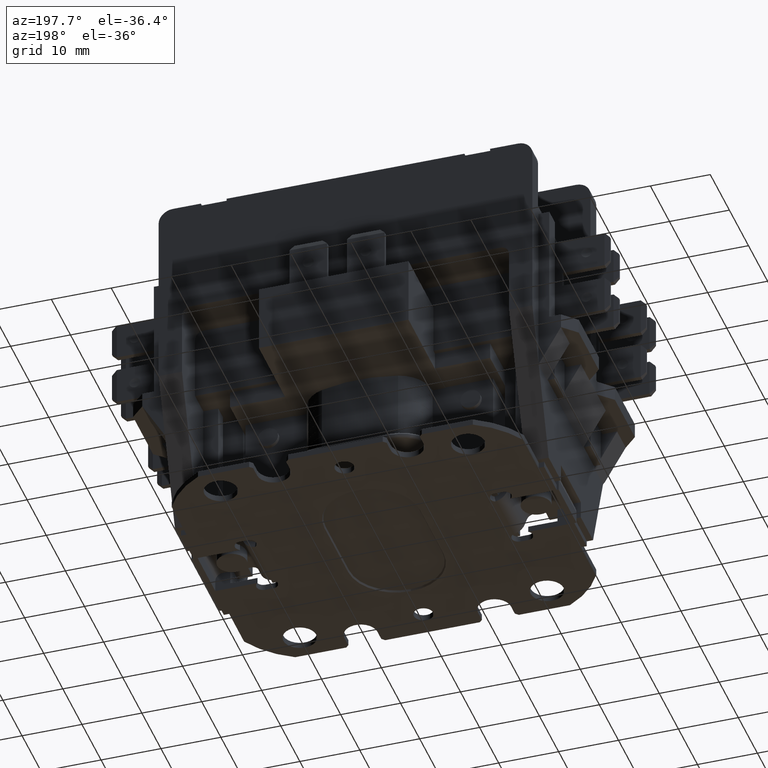
[diagram: clean part render]
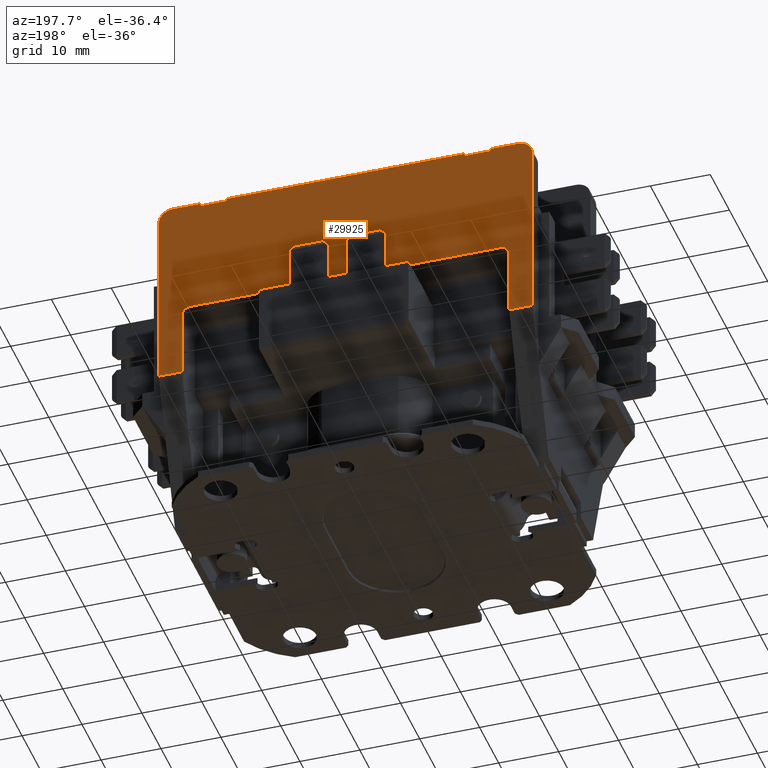
[diagram: same view with one face highlighted and labeled with its STEP entity id]
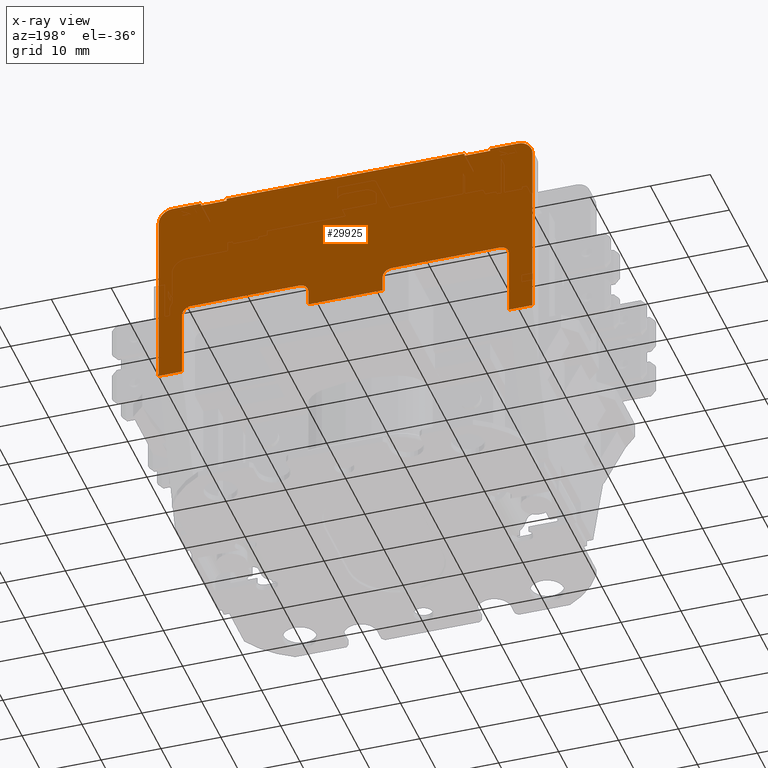
[diagram: x-ray of the same camera — body ghosted, the highlighted face saturated]
A machine part, auxiliary view. The second image highlights one B-rep face of the part: STEP entity #29925.
The next image is the same camera in x-ray: the body ghosted, the highlighted face saturated — about 0% of this face is hidden behind the body in this view.
In plain terms, the highlighted planar face has unit normal (0, 1, -0).
Its self-contained STEP definition (entity closure, byte-faithful):
#1036=LINE($,#43454,#3866);
#1072=LINE($,#43547,#3902);
#1845=LINE($,#48075,#4675);
#1883=LINE($,#48150,#4713);
#1885=LINE($,#48155,#4715);
#1887=LINE($,#48158,#4717);
#1890=LINE($,#48164,#4720);
#1892=LINE($,#48170,#4722);
#1895=LINE($,#48175,#4725);
#1909=LINE($,#48201,#4739);
#1923=LINE($,#48224,#4753);
#2105=LINE($,#48597,#4935);
#2125=LINE($,#48642,#4955);
#2137=LINE($,#48663,#4967);
#2148=LINE($,#48699,#4978);
#2153=LINE($,#48715,#4983);
#2157=LINE($,#48725,#4987);
#2972=LINE($,#53566,#5802);
#2974=LINE($,#53572,#5804);
#2975=LINE($,#53574,#5805);
#3866=VECTOR($,#34902,1.24);
#3902=VECTOR($,#34988,0.254967316379998);
#4675=VECTOR($,#37113,0.465);
#4713=VECTOR($,#37179,0.0399999999999983);
#4715=VECTOR($,#37183,0.0399999999999983);
#4717=VECTOR($,#37187,0.429999999999996);
#4720=VECTOR($,#37192,0.0399999999999983);
#4722=VECTOR($,#37196,0.0399999999999983);
#4725=VECTOR($,#37201,0.43);
#4739=VECTOR($,#37223,3.97);
#4753=VECTOR($,#37243,0.465000000000004);
#4935=VECTOR($,#37641,0.389999999999999);
#4955=VECTOR($,#37689,0.39);
#4967=VECTOR($,#37705,1.11);
#4978=VECTOR($,#37748,1.81);
#4983=VECTOR($,#37765,0.254967316379998);
#4987=VECTOR($,#37779,1.81);
#5802=VECTOR($,#40314,3.01);
#5804=VECTOR($,#40324,3.01);
#5805=VECTOR($,#40327,1.11);
#7080=PLANE($,#32465);
#8897=FACE_OUTER_BOUND($,#10714,.T.);
#10714=EDGE_LOOP($,(#26277,#26278,#26279,#26280,#26281,#26282,#26283,#26284,
#26285,#26286,#26287,#26288,#26289,#26290,#26291,#26292,#26293,#26294,#26295,
#26296,#26297,#26298,#26299,#26300,#26301,#26302));
#11379=CIRCLE($,#31409,0.24);
#11385=CIRCLE($,#31421,0.24);
#11402=CIRCLE($,#31586,0.15);
#11403=CIRCLE($,#31588,0.15);
#11405=CIRCLE($,#31592,0.15);
#11407=CIRCLE($,#31597,0.15);
#12852=VERTEX_POINT($,#43451);
#12853=VERTEX_POINT($,#43453);
#12885=VERTEX_POINT($,#43546);
#13495=VERTEX_POINT($,#48014);
#13496=VERTEX_POINT($,#48015);
#13514=VERTEX_POINT($,#48065);
#13515=VERTEX_POINT($,#48066);
#13518=VERTEX_POINT($,#48074);
#13540=VERTEX_POINT($,#48146);
#13541=VERTEX_POINT($,#48148);
#13542=VERTEX_POINT($,#48152);
#13543=VERTEX_POINT($,#48154);
#13545=VERTEX_POINT($,#48161);
#13546=VERTEX_POINT($,#48166);
#13548=VERTEX_POINT($,#48169);
#13645=VERTEX_POINT($,#48594);
#13646=VERTEX_POINT($,#48596);
#13655=VERTEX_POINT($,#48636);
#13657=VERTEX_POINT($,#48640);
#13664=VERTEX_POINT($,#48662);
#13671=VERTEX_POINT($,#48689);
#13672=VERTEX_POINT($,#48691);
#13673=VERTEX_POINT($,#48695);
#13676=VERTEX_POINT($,#48704);
#13677=VERTEX_POINT($,#48706);
#13679=VERTEX_POINT($,#48717);
#15768=EDGE_CURVE($,#12853,#12852,#1036,.T.);
#15814=EDGE_CURVE($,#12885,#12853,#1072,.T.);
#16812=EDGE_CURVE($,#13495,#13496,#11379,.T.);
#16838=EDGE_CURVE($,#13514,#13515,#11385,.T.);
#16842=EDGE_CURVE($,#13518,#13515,#1845,.T.);
#16880=EDGE_CURVE($,#13540,#13541,#1883,.T.);
#16882=EDGE_CURVE($,#13543,#13542,#1885,.T.);
#16884=EDGE_CURVE($,#13542,#13540,#1887,.T.);
#16887=EDGE_CURVE($,#13545,#13518,#1890,.T.);
#16889=EDGE_CURVE($,#13548,#13546,#1892,.T.);
#16892=EDGE_CURVE($,#13546,#13545,#1895,.T.);
#16907=EDGE_CURVE($,#13541,#13548,#1909,.T.);
#16921=EDGE_CURVE($,#13495,#13543,#1923,.T.);
#17111=EDGE_CURVE($,#13645,#13646,#2105,.T.);
#17131=EDGE_CURVE($,#13657,#13655,#2125,.T.);
#17143=EDGE_CURVE($,#13664,#13646,#2137,.T.);
#17158=EDGE_CURVE($,#13671,#13672,#11402,.T.);
#17160=EDGE_CURVE($,#12885,#13673,#11403,.T.);
#17162=EDGE_CURVE($,#13671,#13673,#2148,.T.);
#17165=EDGE_CURVE($,#13676,#13677,#11405,.T.);
#17170=EDGE_CURVE($,#12852,#13677,#2153,.T.);
#17171=EDGE_CURVE($,#13664,#13679,#11407,.T.);
#17175=EDGE_CURVE($,#13676,#13679,#2157,.T.);
#18361=EDGE_CURVE($,#13645,#13496,#2972,.T.);
#18363=EDGE_CURVE($,#13514,#13655,#2974,.T.);
#18364=EDGE_CURVE($,#13657,#13672,#2975,.T.);
#26277=ORIENTED_EDGE($,*,*,#16907,.T.);
#26278=ORIENTED_EDGE($,*,*,#16889,.T.);
#26279=ORIENTED_EDGE($,*,*,#16892,.T.);
#26280=ORIENTED_EDGE($,*,*,#16887,.T.);
#26281=ORIENTED_EDGE($,*,*,#16842,.T.);
#26282=ORIENTED_EDGE($,*,*,#16838,.F.);
#26283=ORIENTED_EDGE($,*,*,#18363,.T.);
#26284=ORIENTED_EDGE($,*,*,#17131,.F.);
#26285=ORIENTED_EDGE($,*,*,#18364,.T.);
#26286=ORIENTED_EDGE($,*,*,#17158,.F.);
#26287=ORIENTED_EDGE($,*,*,#17162,.T.);
#26288=ORIENTED_EDGE($,*,*,#17160,.F.);
#26289=ORIENTED_EDGE($,*,*,#15814,.T.);
#26290=ORIENTED_EDGE($,*,*,#15768,.T.);
#26291=ORIENTED_EDGE($,*,*,#17170,.T.);
#26292=ORIENTED_EDGE($,*,*,#17165,.F.);
#26293=ORIENTED_EDGE($,*,*,#17175,.T.);
#26294=ORIENTED_EDGE($,*,*,#17171,.F.);
#26295=ORIENTED_EDGE($,*,*,#17143,.T.);
#26296=ORIENTED_EDGE($,*,*,#17111,.F.);
#26297=ORIENTED_EDGE($,*,*,#18361,.T.);
#26298=ORIENTED_EDGE($,*,*,#16812,.F.);
#26299=ORIENTED_EDGE($,*,*,#16921,.T.);
#26300=ORIENTED_EDGE($,*,*,#16882,.T.);
#26301=ORIENTED_EDGE($,*,*,#16884,.T.);
#26302=ORIENTED_EDGE($,*,*,#16880,.T.);
#29925=ADVANCED_FACE($,(#8897),#7080,.T.);
#31409=AXIS2_PLACEMENT_3D($,#48016,#37061,#37062);
#31421=AXIS2_PLACEMENT_3D($,#48067,#37105,#37106);
#31586=AXIS2_PLACEMENT_3D($,#48692,#37738,#37739);
#31588=AXIS2_PLACEMENT_3D($,#48696,#37743,#37744);
#31592=AXIS2_PLACEMENT_3D($,#48707,#37754,#37755);
#31597=AXIS2_PLACEMENT_3D($,#48718,#37768,#37769);
#32465=AXIS2_PLACEMENT_3D($,#53573,#40325,#40326);
#34902=DIRECTION($,(-1.,6.35320758011534E-017,-5.17810930781136E-048));
#34988=DIRECTION($,(-4.49810398576173E-016,-5.60933711948117E-062,-1.));
#37061=DIRECTION('center_axis',(-6.35320758011534E-017,-1.,2.85773883384884E-032));
#37062=DIRECTION('ref_axis',(-0.707106781186546,1.6355129777956E-016,0.707106781186549));
#37105=DIRECTION('center_axis',(-6.35320758011534E-017,-1.,2.85773883384884E-032));
#37106=DIRECTION('ref_axis',(0.707106781186548,1.92967436354252E-048,0.707106781186547));
#37113=DIRECTION($,(1.,-6.35320758011534E-017,-4.49810398576172E-016));
#37179=DIRECTION($,(4.49810398576173E-016,5.60933711948117E-062,1.));
#37183=DIRECTION($,(-4.49810398576173E-016,-5.60933711948117E-062,-1.));
#37187=DIRECTION($,(1.,-6.35320758011534E-017,-4.49810398576163E-016));
#37192=DIRECTION($,(4.49810398576173E-016,5.60933711948117E-062,1.));
#37196=DIRECTION($,(-4.49810398576173E-016,-5.60933711948117E-062,-1.));
#37201=DIRECTION($,(1.,-6.35320758011534E-017,-4.49810398576282E-016));
#37223=DIRECTION($,(1.,-6.35320758011534E-017,-4.49810398576172E-016));
#37243=DIRECTION($,(1.,-6.35320758011534E-017,-4.49810398576172E-016));
#37641=DIRECTION($,(1.,-6.35320758011534E-017,-4.49810398576173E-016));
#37689=DIRECTION($,(1.,-6.35320758011534E-017,-4.49810398576173E-016));
#37705=DIRECTION($,(-4.49810398576173E-016,-5.60933711948117E-062,-1.));
#37738=DIRECTION('center_axis',(6.35320758011534E-017,1.,-2.85773883384884E-032));
#37739=DIRECTION('ref_axis',(0.707106781186546,1.92967436354252E-048,0.707106781186549));
#37743=DIRECTION('center_axis',(6.35320758011534E-017,1.,-2.85773883384884E-032));
#37744=DIRECTION('ref_axis',(-0.707106781186546,-1.92967436354244E-048,
0.707106781186549));
#37748=DIRECTION($,(-1.,6.35320758011534E-017,4.49810398576173E-016));
#37754=DIRECTION('center_axis',(6.35320758011534E-017,1.,-2.85773883384884E-032));
#37755=DIRECTION('ref_axis',(0.707106781186547,1.92967436354252E-048,0.707106781186548));
#37765=DIRECTION($,(4.49810398576173E-016,5.60933711948117E-062,1.));
#37768=DIRECTION('center_axis',(6.35320758011534E-017,1.,-2.85773883384884E-032));
#37769=DIRECTION('ref_axis',(-0.707106781186547,-1.92967436354244E-048,
0.707106781186548));
#37779=DIRECTION($,(-1.,6.35320758011534E-017,4.4981039857617E-016));
#40314=DIRECTION($,(4.49810398576173E-016,5.60933711948117E-062,1.));
#40324=DIRECTION($,(-4.49810398576173E-016,-5.60933711948117E-062,-1.));
#40325=DIRECTION('center_axis',(6.35320758011534E-017,1.,-2.85773883384884E-032));
#40326=DIRECTION('ref_axis',(4.44089209850063E-016,0.,1.));
#40327=DIRECTION($,(4.49810398576173E-016,5.60933711948117E-062,1.));
#43451=CARTESIAN_POINT('',(-0.619999999999998,2.015,3.36503268362));
#43453=CARTESIAN_POINT('',(0.620000000000002,2.015,3.36503268362));
#43454=CARTESIAN_POINT($,(-1.7475,2.015,3.36503268362));
#43546=CARTESIAN_POINT('',(0.620000000000002,2.015,3.62));
#43547=CARTESIAN_POINT($,(0.620000000000001,2.015,1.305));
#48014=CARTESIAN_POINT('',(-2.88,2.015,5.76));
#48015=CARTESIAN_POINT('',(-3.12,2.015,5.52));
#48016=CARTESIAN_POINT('Origin',(-2.88,2.015,5.52));
#48065=CARTESIAN_POINT('',(3.12,2.015,5.52));
#48066=CARTESIAN_POINT('',(2.88,2.015,5.76));
#48067=CARTESIAN_POINT('Origin',(2.88,2.015,5.52));
#48074=CARTESIAN_POINT('',(2.415,2.015,5.76));
#48075=CARTESIAN_POINT($,(-1.7475,2.015,5.76));
#48146=CARTESIAN_POINT('',(-1.985,2.015,5.72));
#48148=CARTESIAN_POINT('',(-1.985,2.015,5.76));
#48150=CARTESIAN_POINT($,(-1.985,2.015,2.93));
#48152=CARTESIAN_POINT('',(-2.41499999999999,2.015,5.72));
#48154=CARTESIAN_POINT('',(-2.41499999999999,2.015,5.76));
#48155=CARTESIAN_POINT($,(-2.41499999999999,2.015,2.93));
#48158=CARTESIAN_POINT($,(-2.8475,2.015,5.72));
#48161=CARTESIAN_POINT('',(2.415,2.015,5.72));
#48164=CARTESIAN_POINT($,(2.415,2.015,2.93));
#48166=CARTESIAN_POINT('',(1.985,2.015,5.72));
#48169=CARTESIAN_POINT('',(1.985,2.015,5.76));
#48170=CARTESIAN_POINT($,(1.985,2.015,2.93));
#48175=CARTESIAN_POINT($,(-0.647499999999998,2.015,5.72));
#48201=CARTESIAN_POINT($,(-1.7475,2.015,5.76));
#48224=CARTESIAN_POINT($,(-1.7475,2.015,5.76));
#48594=CARTESIAN_POINT('',(-3.12,2.015,2.51));
#48596=CARTESIAN_POINT('',(-2.73,2.015,2.51));
#48597=CARTESIAN_POINT($,(-1.7475,2.015,2.51));
#48636=CARTESIAN_POINT('',(3.12,2.015,2.51));
#48640=CARTESIAN_POINT('',(2.73,2.015,2.51));
#48642=CARTESIAN_POINT($,(-1.7475,2.015,2.51));
#48662=CARTESIAN_POINT('',(-2.73,2.015,3.62));
#48663=CARTESIAN_POINT($,(-2.73,2.015,0.100000000000001));
#48689=CARTESIAN_POINT('',(2.58,2.015,3.77));
#48691=CARTESIAN_POINT('',(2.73,2.015,3.62));
#48692=CARTESIAN_POINT('Origin',(2.58,2.015,3.62));
#48695=CARTESIAN_POINT('',(0.770000000000002,2.015,3.77));
#48696=CARTESIAN_POINT('Origin',(0.770000000000002,2.015,3.62));
#48699=CARTESIAN_POINT($,(-0.909999999999998,2.015,3.77));
#48704=CARTESIAN_POINT('',(-0.769999999999998,2.015,3.77));
#48706=CARTESIAN_POINT('',(-0.619999999999998,2.015,3.62));
#48707=CARTESIAN_POINT('Origin',(-0.769999999999998,2.015,3.62));
#48715=CARTESIAN_POINT($,(-0.619999999999999,2.015,1.305));
#48717=CARTESIAN_POINT('',(-2.58,2.015,3.77));
#48718=CARTESIAN_POINT('Origin',(-2.58,2.015,3.62));
#48725=CARTESIAN_POINT($,(-2.585,2.015,3.77));
#53566=CARTESIAN_POINT($,(-3.12,2.015,1.16));
#53572=CARTESIAN_POINT($,(3.12,2.015,1.16));
#53573=CARTESIAN_POINT('Origin',(-3.495,2.015,0.100000000000002));
#53574=CARTESIAN_POINT($,(2.73,2.015,0.0999999999999988));